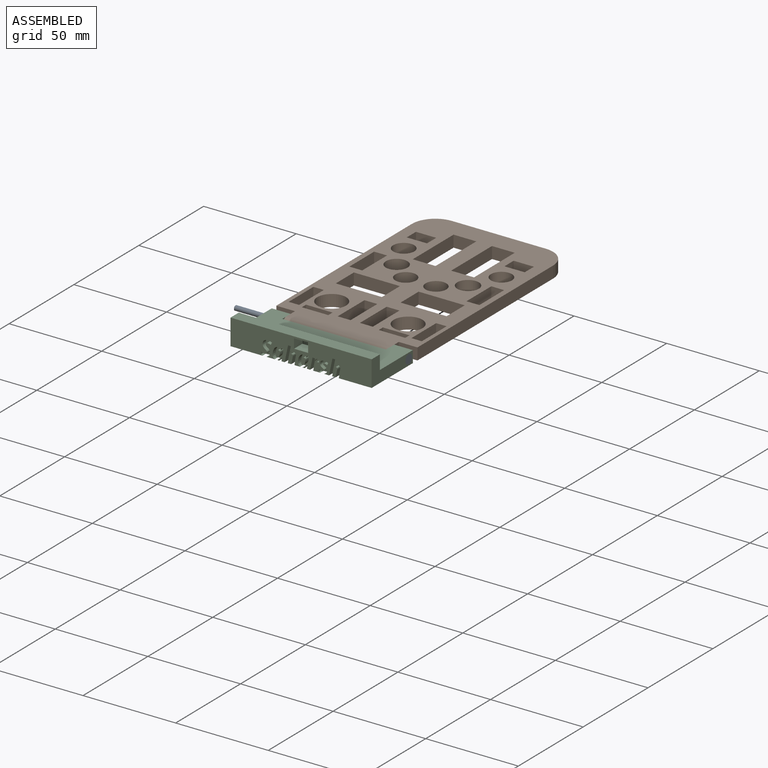
[diagram: assembled view]
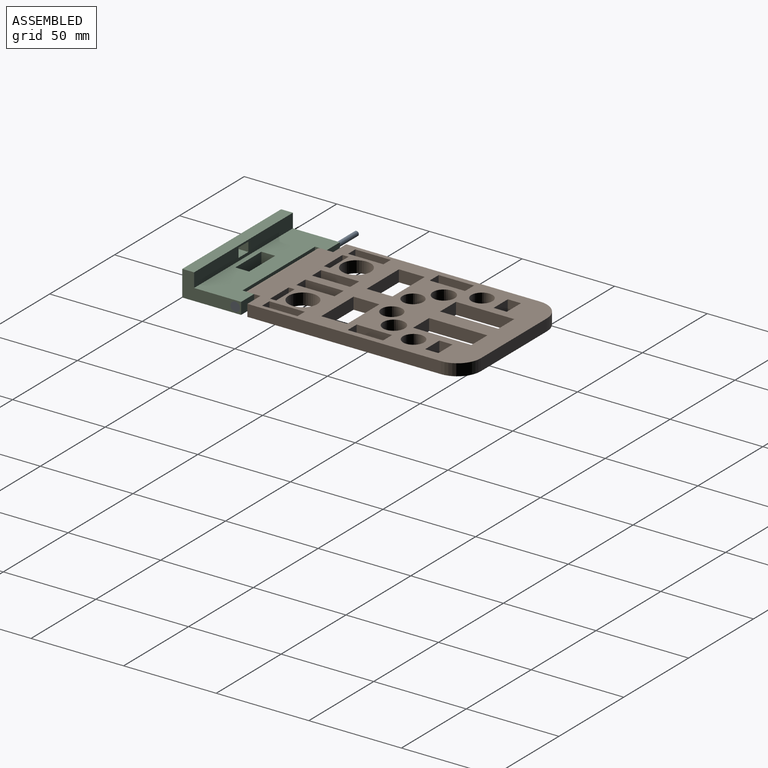
[diagram: assembled view, second angle]
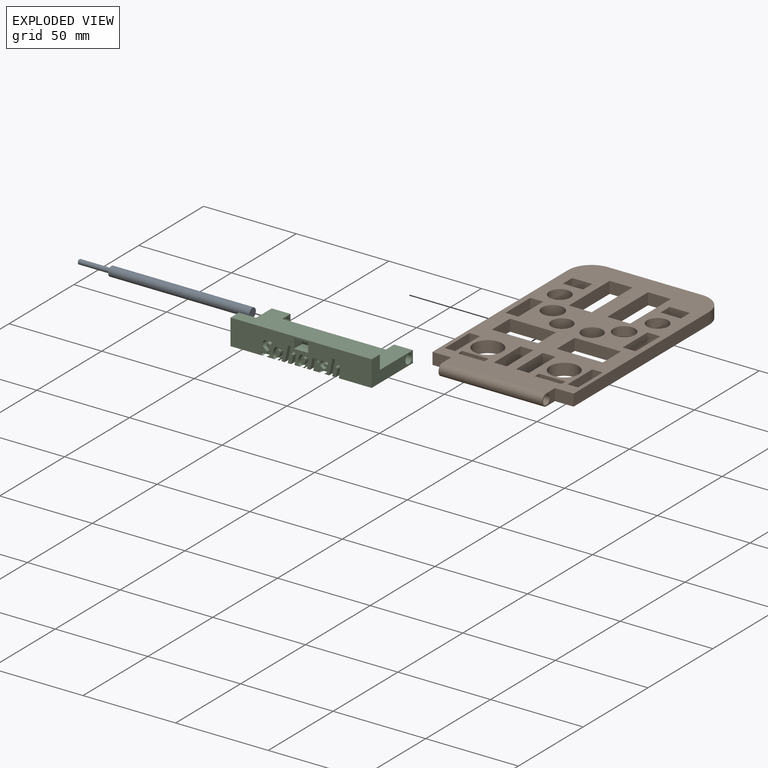
[diagram: exploded view]
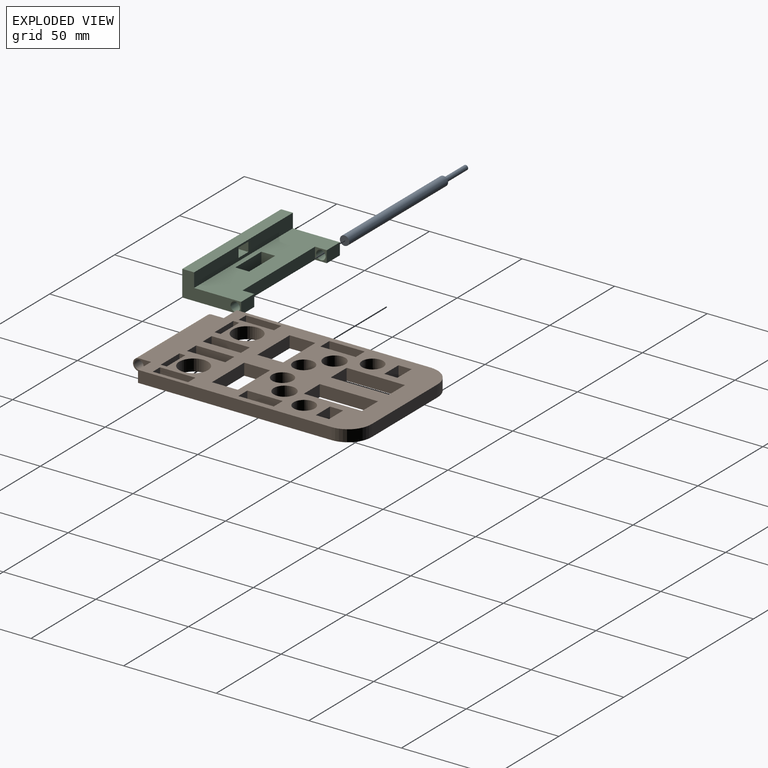
[diagram: exploded view, second angle]
ASSEMBLY  parts=3 mates=2
PART A: 5 faces, bbox 5.1x5.1x93.5 mm
  f0: cylinder r=2.54mm len=76.2mm, axis (0,0,-1), area 1216.1mm2, adj f1,f2
  f1: plane 5.08x5.08mm, normal (0,0,1), area 20.3mm2, adj f0
  f2: plane 5.08x5.08mm, normal (0,0,-1), area 15.2mm2, adj f0,f3
  f3: cylinder r=1.27mm len=17.27mm, axis (0,0,1), area 137.8mm2, adj f2,f4
  f4: plane 2.54x2.54mm, normal (0,0,-1), area 5.1mm2, adj f3
PART B: 77 faces, bbox 76.2x127x6.4 mm
  f0: plane 123.83x76.2mm, normal (0,0,-1), area 5753.7mm2, adj f1,f2,f4,f5,f6,f7,f8,f9
  f1: plane 104.51x6.35mm, normal (1,0,0), area 663.6mm2, adj f0,f3,f17,f75
  f2: plane 104.51x6.35mm, normal (-1,0,0), area 663.6mm2, adj f0,f3,f19,f72
  f3: plane 123.83x76.2mm, normal (0,0,1), area 5753.7mm2, adj f1,f2,f4,f5,f6,f7,f8,f9
  f4: cylinder r=3.17mm len=56.04mm, axis (-1,0,0), area 559mm2, adj f0,f3,f73,f74
  f5: plane 6.95x6.35mm, normal (0,-1,0), area 44.1mm2, adj f0,f3,f6,f52
  f6: plane 20.63x6.35mm, normal (-1,0,0), area 131mm2, adj f0,f3,f5,f7
  f7: plane 6.95x6.35mm, normal (0,1,0), area 44.1mm2, adj f0,f3,f6,f52
  f8: plane 14.33x6.35mm, normal (0,-1,0), area 91mm2, adj f0,f3,f9,f53
  f9: plane 6.35x3.26mm, normal (-1,0,0), area 20.7mm2, adj f0,f3,f8,f10
  f10: plane 14.33x6.35mm, normal (0,1,0), area 91mm2, adj f0,f3,f9,f53
  f11: plane 19.11x6.35mm, normal (-1,0,0), area 121.3mm2, adj f0,f3,f12,f54
  f12: plane 6.35x5.65mm, normal (0,1,0), area 35.8mm2, adj f0,f3,f11,f13
  f13: plane 19.11x6.35mm, normal (1,0,0), area 121.3mm2, adj f0,f3,f12,f54
  f14: plane 12.31x6.35mm, normal (0,-1,0), area 78.2mm2, adj f0,f3,f15,f55
  f15: plane 31.46x6.35mm, normal (-1,0,0), area 199.8mm2, adj f0,f3,f14,f16
  f16: plane 12.31x6.35mm, normal (0,1,0), area 78.2mm2, adj f0,f3,f15,f55
  f17: cylinder r=12.7mm len=12.7mm, axis (0,0,-1), area 126.7mm2, adj f0,f1,f3,f18
  f18: plane 50.8x6.35mm, normal (0,1,0), area 322.6mm2, adj f0,f3,f17,f19
  f19: cylinder r=12.7mm len=12.7mm, axis (0,0,-1), area 126.7mm2, adj f0,f2,f3,f18
  f20: plane 10.94x6.35mm, normal (0,1,0), area 69.5mm2, adj f0,f3,f21,f56
  f21: plane 7.11x6.35mm, normal (1,0,0), area 45.2mm2, adj f0,f3,f20,f22
  f22: plane 10.94x6.35mm, normal (0,-1,0), area 69.5mm2, adj f0,f3,f21,f56
  f23: plane 24.89x6.35mm, normal (0,1,0), area 158.1mm2, adj f0,f3,f24,f57
  f24: plane 13.95x6.35mm, normal (1,0,0), area 88.6mm2, adj f0,f3,f23,f25
  f25: plane 24.89x6.35mm, normal (0,-1,0), area 158.1mm2, adj f0,f3,f24,f57
  f26: plane 12.31x6.35mm, normal (0,1,0), area 78.2mm2, adj f0,f3,f27,f58
  f27: plane 31.46x6.35mm, normal (1,0,0), area 199.8mm2, adj f0,f3,f26,f28
  f28: plane 12.31x6.35mm, normal (0,-1,0), area 78.2mm2, adj f0,f3,f27,f58
  f29: plane 7.11x6.35mm, normal (1,0,0), area 45.2mm2, adj f0,f3,f30,f59
  f30: plane 10.94x6.35mm, normal (0,-1,0), area 69.5mm2, adj f0,f3,f29,f31
  f31: plane 7.11x6.35mm, normal (-1,0,0), area 45.2mm2, adj f0,f3,f30,f59
  f32: plane 6.95x6.35mm, normal (0,1,0), area 44.1mm2, adj f0,f3,f33,f60
  f33: plane 20.63x6.35mm, normal (1,0,0), area 131mm2, adj f0,f3,f32,f34
  f34: plane 6.95x6.35mm, normal (0,-1,0), area 44.1mm2, adj f0,f3,f33,f60
  f35: plane 6.35x5.65mm, normal (0,1,0), area 35.8mm2, adj f0,f3,f36,f61
  f36: plane 19.11x6.35mm, normal (1,0,0), area 121.3mm2, adj f0,f3,f35,f37
  f37: plane 6.35x5.65mm, normal (0,-1,0), area 35.8mm2, adj f0,f3,f36,f61
  f38: plane 6.95x6.35mm, normal (0,1,0), area 44.1mm2, adj f0,f3,f39,f62
  f39: plane 19.11x6.35mm, normal (1,0,0), area 121.3mm2, adj f0,f3,f38,f40
  f40: plane 6.95x6.35mm, normal (0,-1,0), area 44.1mm2, adj f0,f3,f39,f62
  f41: plane 14.33x6.35mm, normal (0,1,0), area 91mm2, adj f0,f3,f42,f63
  f42: plane 6.35x3.26mm, normal (1,0,0), area 20.7mm2, adj f0,f3,f41,f43
  f43: plane 14.33x6.35mm, normal (0,-1,0), area 91mm2, adj f0,f3,f42,f63
  f44: plane 6.95x6.35mm, normal (0,-1,0), area 44.1mm2, adj f0,f3,f45,f64
  f45: plane 19.11x6.35mm, normal (-1,0,0), area 121.3mm2, adj f0,f3,f44,f46
  f46: plane 6.95x6.35mm, normal (0,1,0), area 44.1mm2, adj f0,f3,f45,f64
  f47: plane 13.95x6.35mm, normal (1,0,0), area 88.6mm2, adj f0,f3,f48,f65
  f48: plane 24.89x6.35mm, normal (0,-1,0), area 158.1mm2, adj f0,f3,f47,f49
  f49: plane 13.95x6.35mm, normal (-1,0,0), area 88.6mm2, adj f0,f3,f48,f65
  f50: cylinder r=5.6mm len=11.21mm, axis (0,0,-1), area 223.6mm2, adj f0,f3
  f51: cylinder r=5.6mm len=11.21mm, axis (0,0,-1), area 223.6mm2, adj f0,f3
  f52: plane 20.63x6.35mm, normal (1,0,0), area 131mm2, adj f0,f3,f5,f7
  f53: plane 6.35x3.26mm, normal (1,0,0), area 20.7mm2, adj f0,f3,f8,f10
  f54: plane 6.35x5.65mm, normal (0,-1,0), area 35.8mm2, adj f0,f3,f11,f13
  f55: plane 31.46x6.35mm, normal (1,0,0), area 199.8mm2, adj f0,f3,f14,f16
  f56: plane 7.11x6.35mm, normal (-1,0,0), area 45.2mm2, adj f0,f3,f20,f22
  f57: plane 13.95x6.35mm, normal (-1,0,0), area 88.6mm2, adj f0,f3,f23,f25
  f58: plane 31.46x6.35mm, normal (-1,0,0), area 199.8mm2, adj f0,f3,f26,f28
  f59: plane 10.94x6.35mm, normal (0,1,0), area 69.5mm2, adj f0,f3,f29,f31
  f60: plane 20.63x6.35mm, normal (-1,0,0), area 131mm2, adj f0,f3,f32,f34
  f61: plane 19.11x6.35mm, normal (-1,0,0), area 121.3mm2, adj f0,f3,f35,f37
  f62: plane 19.11x6.35mm, normal (-1,0,0), area 121.3mm2, adj f0,f3,f38,f40
  f63: plane 6.35x3.26mm, normal (-1,0,0), area 20.7mm2, adj f0,f3,f41,f43
  f64: plane 19.11x6.35mm, normal (1,0,0), area 121.3mm2, adj f0,f3,f44,f46
  f65: plane 24.89x6.35mm, normal (0,1,0), area 158.1mm2, adj f0,f3,f47,f49
  f66: cylinder r=5.69mm len=11.38mm, axis (0,0,-1), area 227.1mm2, adj f0,f3
  f67: cylinder r=5.85mm len=11.71mm, axis (0,0,-1), area 233.6mm2, adj f0,f3
  f68: cylinder r=7.75mm len=15.49mm, axis (0,0,-1), area 309.1mm2, adj f0,f3
  f69: cylinder r=5.69mm len=11.38mm, axis (0,0,-1), area 227.1mm2, adj f0,f3
  f70: cylinder r=7.75mm len=15.49mm, axis (0,0,-1), area 309.1mm2, adj f0,f3
  f71: cylinder r=5.85mm len=11.71mm, axis (0,0,-1), area 233.6mm2, adj f0,f3
  f72: plane 10.08x6.35mm, normal (0,-1,0), area 64mm2, adj f0,f2,f3,f73
  f73: plane 9.79x6.35mm, normal (-1,0,0), area 37.6mm2, adj f0,f3,f4,f72,f76
  f74: plane 9.79x6.35mm, normal (1,0,0), area 37.6mm2, adj f0,f3,f4,f75,f76
  f75: plane 10.08x6.35mm, normal (0,-1,0), area 64mm2, adj f0,f1,f3,f74
  f76: cylinder r=2.54mm len=56.04mm, axis (-1,0,0), area 894.4mm2, adj f73,f74
PART C: 174 faces, bbox 76.2x31.8x14 mm
  f0: plane 76.2x14mm, normal (0,-1,0), area 838.4mm2, adj f5,f8,f9,f21,f22,f23,f24,f25
  f1: plane 5.01x2.75mm, normal (0,-1,0), area 8.8mm2, adj f5,f165,f166,f167,f168,f169,f170
  f2: plane 5.01x2.75mm, normal (0,-1,0), area 8.8mm2, adj f5,f147,f148,f149,f150,f151,f152
  f3: plane 1.18x0.85mm, normal (0,-1,0), area 0.4mm2, adj f5,f86,f98,f99
  f4: plane 1.18x0.85mm, normal (0,-1,0), area 0.4mm2, adj f5,f61,f73,f74
  f5: plane 76.2x31.75mm, normal (0,0,-1), area 1868.9mm2, adj f0,f1,f2,f3,f4,f6,f8,f9
  f6: plane 55.88x6.35mm, normal (0,1,0), area 354.8mm2, adj f5,f7,f14,f16
  f7: plane 76.2x25.4mm, normal (0,0,1), area 1430.4mm2, adj f6,f8,f9,f10,f11,f12,f13,f14
  f8: plane 31.75x13.97mm, normal (1,0,0), area 229.7mm2, adj f0,f5,f7,f15,f19,f20,f21
  f9: plane 31.75x13.97mm, normal (-1,0,0), area 229.7mm2, adj f0,f5,f7,f17,f18,f20,f21
  f10: plane 7.47x6.35mm, normal (-1,0,0), area 47.5mm2, adj f5,f7,f11,f13
  f11: plane 20.1x6.35mm, normal (0,-1,0), area 127.6mm2, adj f5,f7,f10,f12
  f12: plane 7.47x6.35mm, normal (1,0,0), area 47.5mm2, adj f5,f7,f11,f13
  f13: plane 20.1x6.35mm, normal (0,1,0), area 127.6mm2, adj f5,f7,f10,f12
  f14: plane 6.35x6.35mm, normal (-1,0,0), area 20.1mm2, adj f5,f6,f7,f15,f19
  f15: plane 10.16x6.35mm, normal (0,1,0), area 64.5mm2, adj f5,f7,f8,f14
  f16: plane 6.35x6.35mm, normal (1,0,0), area 20.1mm2, adj f5,f6,f7,f17,f18
  f17: plane 10.16x6.35mm, normal (0,1,0), area 64.5mm2, adj f5,f7,f9,f16
  f18: cylinder r=2.54mm len=10.16mm, axis (-1,0,0), area 162.1mm2, adj f9,f16
  f19: cylinder r=2.54mm len=10.16mm, axis (-1,0,0), area 162.1mm2, adj f8,f14
  f20: plane 76.2x7.62mm, normal (0,1,0), area 541.9mm2, adj f7,f8,f9,f21,f22,f23,f24,f25
  f21: plane 76.2x6.35mm, normal (0,0,1), area 483.9mm2, adj f0,f8,f9,f20
  f22: plane 7.62x6.35mm, normal (0,0,-1), area 48.4mm2, adj f0,f20,f23,f25
  f23: plane 6.35x5.08mm, normal (1,0,0), area 32.3mm2, adj f0,f20,f22,f24
  f24: plane 7.62x6.35mm, normal (0,0,1), area 48.4mm2, adj f0,f20,f23,f25
  f25: plane 6.35x5.08mm, normal (-1,0,0), area 32.3mm2, adj f0,f20,f22,f24
  f26: plane 6.25x2.54mm, normal (0.98,0,-0.21), area 16.2mm2, adj f0,f5,f36,f37
  f27: plane 2.8x2.54mm, normal (-0.98,0,0.21), area 7.3mm2, adj f0,f5,f28,f37
  f28: extruded ~2.54x1.47mm, area 4.2mm2, adj f0,f27,f29,f37
  f29: extruded ~2.54x1.14mm, area 3.3mm2, adj f0,f28,f30,f37
  f30: extruded ~2.54x0.56mm, area 1.4mm2, adj f0,f29,f31,f37
  f31: plane 2.54x1.62mm, normal (-0.98,0,0.22), area 4.2mm2, adj f0,f30,f32,f37
  f32: extruded ~2.54x0.54mm, area 1.4mm2, adj f0,f31,f33,f37
  f33: extruded ~2.54x1.95mm, area 6.2mm2, adj f0,f32,f34,f37
  f34: plane 2.54x0.06mm, normal (0,0,-1), area 0.2mm2, adj f0,f33,f35,f37
  f35: plane 2.54x1.16mm, normal (-0.99,0,0.1), area 3mm2, adj f0,f34,f36,f37
  f36: plane 2.54x1.29mm, normal (0,0,-1), area 3.3mm2, adj f0,f26,f35,f37
  f37: plane 6.37x5.04mm, normal (0,-1,0), area 13.5mm2, adj f5,f26,f27,f28,f29,f30,f31,f32
  f38: extruded ~2.54x0.69mm, area 1.9mm2, adj f0,f5,f40,f60
  f39: extruded ~2.54x0.94mm, area 2.7mm2, adj f0,f5,f40,f41
  f40: plane 6.39x5.06mm, normal (0,-1,0), area 17.6mm2, adj f5,f38,f39,f41,f42,f43,f44,f45
  f41: extruded ~2.54x1.61mm, area 4.6mm2, adj f0,f39,f40,f42
  f42: extruded ~2.54x0.95mm, area 2.6mm2, adj f0,f40,f41,f43
  f43: extruded ~2.54x1mm, area 3.2mm2, adj f0,f40,f42,f44
  f44: extruded ~2.54x0.67mm, area 2mm2, adj f0,f40,f43,f45
  f45: extruded ~2.54x0.38mm, area 1.1mm2, adj f0,f40,f44,f46
  f46: extruded ~2.54x0.38mm, area 1.1mm2, adj f0,f40,f45,f47
  f47: extruded ~2.54x0.51mm, area 1.4mm2, adj f0,f40,f46,f48
  f48: extruded ~2.54x1.44mm, area 3.9mm2, adj f0,f40,f47,f49
  f49: plane 2.54x1.2mm, normal (-0.91,0,0.42), area 3.4mm2, adj f0,f40,f48,f50
  f50: extruded ~2.54x2.03mm, area 5.4mm2, adj f0,f40,f49,f51
  f51: extruded ~2.54x1.77mm, area 4.8mm2, adj f0,f40,f50,f52
  f52: extruded ~2.54x1.47mm, area 4.2mm2, adj f0,f40,f51,f53
  f53: extruded ~2.54x0.89mm, area 2.4mm2, adj f0,f40,f52,f54
  f54: extruded ~2.54x0.95mm, area 3.1mm2, adj f0,f40,f53,f55
  f55: extruded ~2.54x0.73mm, area 2.2mm2, adj f0,f40,f54,f56
  f56: extruded ~2.54x0.43mm, area 1.2mm2, adj f0,f40,f55,f57
  f57: extruded ~2.54x0.5mm, area 1.5mm2, adj f0,f40,f56,f58
  f58: extruded ~2.54x0.73mm, area 1.9mm2, adj f0,f40,f57,f59
  f59: extruded ~2.54x1.78mm, area 4.8mm2, adj f0,f40,f58,f60
  f60: plane 2.54x1.39mm, normal (1,0,0), area 3.5mm2, adj f0,f38,f40,f59
  f61: extruded ~2.54x1.1mm, area 3.5mm2, adj f4,f5,f63,f73
  f62: extruded ~2.54x0.65mm, area 2.1mm2, adj f0,f5,f63,f84
  f63: plane 6.41x6.11mm, normal (0,-1,0), area 24.1mm2, adj f5,f61,f62,f64,f65,f66,f67,f68
  f64: extruded ~2.54x0.54mm, area 1.6mm2, adj f63,f65,f85,f172
  f65: extruded ~2.54x0.74mm, area 2mm2, adj f63,f64,f66,f172
  f66: extruded ~2.54x1.31mm, area 3.4mm2, adj f63,f65,f67,f172
  f67: extruded ~2.54x1.06mm, area 3.1mm2, adj f63,f66,f68,f172
  f68: extruded ~2.54x0.72mm, area 2.2mm2, adj f63,f67,f69,f172
  f69: extruded ~2.54x0.57mm, area 1.6mm2, adj f63,f68,f70,f172
  f70: extruded ~2.54x0.66mm, area 1.8mm2, adj f63,f69,f71,f172
  f71: extruded ~2.54x1.45mm, area 3.7mm2, adj f63,f70,f72,f172
  f72: extruded ~2.54x1.01mm, area 3mm2, adj f63,f71,f85,f172
  f73: plane 2.54x0.04mm, normal (0,0,1), area 0.1mm2, adj f4,f61,f63,f74
  f74: plane 2.54x0.81mm, normal (1,0,-0.1), area 2.1mm2, adj f4,f5,f63,f73
  f75: plane 6.25x2.54mm, normal (-0.98,0,0.21), area 16.2mm2, adj f0,f5,f63,f76
  f76: plane 2.54x1.3mm, normal (0,0,-1), area 3.3mm2, adj f0,f63,f75,f77
  f77: plane 2.54x0.8mm, normal (0.93,0,-0.37), area 2.2mm2, adj f0,f63,f76,f78
  f78: plane 2.54x0.04mm, normal (0,0,-1), area 0.1mm2, adj f0,f63,f77,f79
  f79: extruded ~2.54x0.68mm, area 2.4mm2, adj f0,f63,f78,f80
  f80: extruded ~2.54x0.94mm, area 2.5mm2, adj f0,f63,f79,f81
  f81: extruded ~2.54x1.44mm, area 4mm2, adj f0,f63,f80,f82
  f82: extruded ~2.54x1.55mm, area 4.8mm2, adj f0,f63,f81,f83
  f83: extruded ~2.54x2.11mm, area 5.5mm2, adj f0,f63,f82,f84
  f84: extruded ~2.54x1.67mm, area 4.5mm2, adj f0,f62,f63,f83
  f85: extruded ~2.54x0.74mm, area 2.2mm2, adj f63,f64,f72,f172
  f86: extruded ~2.54x1.1mm, area 3.5mm2, adj f3,f5,f88,f98
  f87: extruded ~2.54x0.65mm, area 2.1mm2, adj f0,f5,f88,f109
  f88: plane 6.41x6.11mm, normal (0,-1,0), area 24.1mm2, adj f5,f86,f87,f89,f90,f91,f92,f93
  f89: extruded ~2.54x0.54mm, area 1.6mm2, adj f88,f90,f110,f173
  f90: extruded ~2.54x0.74mm, area 2mm2, adj f88,f89,f91,f173
  f91: extruded ~2.54x1.31mm, area 3.4mm2, adj f88,f90,f92,f173
  f92: extruded ~2.54x1.06mm, area 3.1mm2, adj f88,f91,f93,f173
  f93: extruded ~2.54x0.72mm, area 2.2mm2, adj f88,f92,f94,f173
  f94: extruded ~2.54x0.57mm, area 1.6mm2, adj f88,f93,f95,f173
  f95: extruded ~2.54x0.66mm, area 1.8mm2, adj f88,f94,f96,f173
  f96: extruded ~2.54x1.45mm, area 3.7mm2, adj f88,f95,f97,f173
  f97: extruded ~2.54x1.01mm, area 3mm2, adj f88,f96,f110,f173
  f98: plane 2.54x0.04mm, normal (0,0,1), area 0.1mm2, adj f3,f86,f88,f99
  f99: plane 2.54x0.81mm, normal (1,0,-0.1), area 2.1mm2, adj f3,f5,f88,f98
  f100: plane 6.25x2.54mm, normal (-0.98,0,0.21), area 16.2mm2, adj f0,f5,f88,f101
  f101: plane 2.54x1.3mm, normal (0,0,-1), area 3.3mm2, adj f0,f88,f100,f102
  f102: plane 2.54x0.8mm, normal (0.93,0,-0.37), area 2.2mm2, adj f0,f88,f101,f103
  f103: plane 2.54x0.04mm, normal (0,0,-1), area 0.1mm2, adj f0,f88,f102,f104
  f104: extruded ~2.54x0.68mm, area 2.4mm2, adj f0,f88,f103,f105
  f105: extruded ~2.54x0.94mm, area 2.5mm2, adj f0,f88,f104,f106
  f106: extruded ~2.54x1.44mm, area 4mm2, adj f0,f88,f105,f107
  f107: extruded ~2.54x1.55mm, area 4.8mm2, adj f0,f88,f106,f108
  f108: extruded ~2.54x2.11mm, area 5.5mm2, adj f0,f88,f107,f109
  f109: extruded ~2.54x1.67mm, area 4.5mm2, adj f0,f87,f88,f108
  f110: extruded ~2.54x0.74mm, area 2.2mm2, adj f88,f89,f97,f173
  f111: extruded ~2.54x0.93mm, area 2.6mm2, adj f0,f5,f113,f135
  f112: extruded ~2.54x1.19mm, area 3.4mm2, adj f0,f5,f113,f114
  f113: plane 8.32x5.98mm, normal (0,-1,0), area 23mm2, adj f5,f111,f112,f114,f115,f116,f117,f118
  f114: extruded ~2.54x1.85mm, area 5.3mm2, adj f0,f112,f113,f115
  f115: extruded ~2.54x1.26mm, area 3.4mm2, adj f0,f113,f114,f116
  f116: extruded ~2.54x1.01mm, area 3.6mm2, adj f0,f113,f115,f117
  f117: extruded ~2.54x0.83mm, area 2.7mm2, adj f0,f113,f116,f118
  f118: extruded ~2.54x0.6mm, area 1.6mm2, adj f0,f113,f117,f119
  f119: extruded ~2.54x0.66mm, area 1.9mm2, adj f0,f113,f118,f120
  f120: extruded ~2.54x0.76mm, area 2.1mm2, adj f0,f113,f119,f121
  f121: extruded ~2.54x1.61mm, area 4.3mm2, adj f0,f113,f120,f122
  f122: plane 2.54x1.3mm, normal (-0.91,0,0.42), area 3.7mm2, adj f0,f113,f121,f123
  f123: extruded ~2.54x2.22mm, area 5.9mm2, adj f0,f113,f122,f124
  f124: extruded ~2.54x1.47mm, area 3.9mm2, adj f0,f113,f123,f125
  f125: extruded ~2.54x0.99mm, area 3.4mm2, adj f0,f113,f124,f126
  f126: extruded ~2.54x1.29mm, area 3.4mm2, adj f0,f113,f125,f127
  f127: extruded ~2.54x1.17mm, area 3.1mm2, adj f0,f113,f126,f128
  f128: extruded ~2.54x1.1mm, area 3.9mm2, adj f0,f113,f127,f129
  f129: extruded ~2.54x0.69mm, area 2.3mm2, adj f0,f113,f128,f130
  f130: extruded ~2.54x0.34mm, area 1mm2, adj f0,f113,f129,f131
  f131: extruded ~2.54x0.42mm, area 1.1mm2, adj f0,f113,f130,f132
  f132: extruded ~2.54x0.65mm, area 2mm2, adj f0,f113,f131,f133
  f133: extruded ~2.54x0.98mm, area 2.6mm2, adj f0,f113,f132,f134
  f134: extruded ~2.54x2mm, area 5.4mm2, adj f0,f113,f133,f135
  f135: plane 2.54x1.53mm, normal (1,0,0), area 3.9mm2, adj f0,f111,f113,f134
  f136: plane 3.56x2.54mm, normal (-0.98,0,0.2), area 9.2mm2, adj f0,f5,f137,f153
  f137: extruded ~2.54x1.01mm, area 2.6mm2, adj f0,f136,f138,f153
  f138: extruded ~2.54x1.33mm, area 3.6mm2, adj f0,f137,f139,f153
  f139: extruded ~2.54x1.19mm, area 3.4mm2, adj f0,f138,f140,f153
  f140: extruded ~2.54x0.99mm, area 2.6mm2, adj f0,f139,f141,f153
  f141: extruded ~2.54x0.77mm, area 2.6mm2, adj f0,f140,f142,f153
  f142: plane 2.54x0.04mm, normal (0,0,-1), area 0.1mm2, adj f0,f141,f143,f153
  f143: extruded ~2.54x1.73mm, area 4.6mm2, adj f0,f142,f144,f153
  f144: extruded ~2.54x1.56mm, area 4mm2, adj f0,f143,f145,f153
  f145: plane 2.54x1.68mm, normal (0,0,-1), area 4.3mm2, adj f0,f144,f146,f153
  f146: plane 8.7x2.54mm, normal (0.98,0,-0.21), area 22.6mm2, adj f0,f5,f145,f153
  f147: plane 2.59x2.54mm, normal (-0.98,0,0.21), area 6.7mm2, adj f2,f5,f148,f153
  f148: extruded ~2.54x1.78mm, area 4.8mm2, adj f2,f147,f149,f153
  f149: extruded ~2.54x0.93mm, area 3mm2, adj f2,f148,f150,f153
  f150: extruded ~2.54x0.69mm, area 2.7mm2, adj f2,f149,f151,f153
  f151: extruded ~2.54x0.67mm, area 1.7mm2, adj f2,f150,f152,f153
  f152: plane 3.65x2.54mm, normal (0.98,0,-0.21), area 9.5mm2, adj f2,f5,f151,f153
  f153: plane 8.7x6.13mm, normal (0,-1,0), area 27.1mm2, adj f5,f136,f137,f138,f139,f140,f141,f142
  f154: plane 3.56x2.54mm, normal (-0.98,0,0.2), area 9.2mm2, adj f0,f5,f155,f171
  f155: extruded ~2.54x1.01mm, area 2.6mm2, adj f0,f154,f156,f171
  f156: extruded ~2.54x1.33mm, area 3.6mm2, adj f0,f155,f157,f171
  f157: extruded ~2.54x1.19mm, area 3.4mm2, adj f0,f156,f158,f171
  f158: extruded ~2.54x0.99mm, area 2.6mm2, adj f0,f157,f159,f171
  f159: extruded ~2.54x0.77mm, area 2.6mm2, adj f0,f158,f160,f171
  f160: plane 2.54x0.04mm, normal (0,0,-1), area 0.1mm2, adj f0,f159,f161,f171
  f161: extruded ~2.54x1.73mm, area 4.6mm2, adj f0,f160,f162,f171
  f162: extruded ~2.54x1.56mm, area 4mm2, adj f0,f161,f163,f171
  f163: plane 2.54x1.68mm, normal (0,0,-1), area 4.3mm2, adj f0,f162,f164,f171
  f164: plane 8.7x2.54mm, normal (0.98,0,-0.21), area 22.6mm2, adj f0,f5,f163,f171
  f165: plane 2.59x2.54mm, normal (-0.98,0,0.21), area 6.7mm2, adj f1,f5,f166,f171
  f166: extruded ~2.54x1.78mm, area 4.8mm2, adj f1,f165,f167,f171
  f167: extruded ~2.54x0.93mm, area 3mm2, adj f1,f166,f168,f171
  f168: extruded ~2.54x0.69mm, area 2.7mm2, adj f1,f167,f169,f171
  f169: extruded ~2.54x0.67mm, area 1.7mm2, adj f1,f168,f170,f171
  f170: plane 3.65x2.54mm, normal (0.98,0,-0.21), area 9.5mm2, adj f1,f5,f169,f171
  f171: plane 8.7x6.13mm, normal (0,-1,0), area 27.1mm2, adj f5,f154,f155,f156,f157,f158,f159,f160
  f172: plane 3.76x2.26mm, normal (0,-1,0), area 6.3mm2, adj f64,f65,f66,f67,f68,f69,f70,f71
  f173: plane 3.76x2.26mm, normal (0,-1,0), area 6.3mm2, adj f89,f90,f91,f92,f93,f94,f95,f96
PLACE A rot(axis=(0.58,0.58,0.58),120deg) t=(-0.08,-53.14,-25.79)mm
PLACE B t=(0,7.18,-28.97)mm
PLACE C t=(-0.08,-69.02,-28.97)mm
MATE cylindrical C.f18 <-> B.f4  axis (1,0,0) through (-28.02,-53.14,-25.79)mm
MATE cylindrical A.f0 <-> C.f18  axis (1,0,0) through (38.02,-53.14,-25.79)mm
